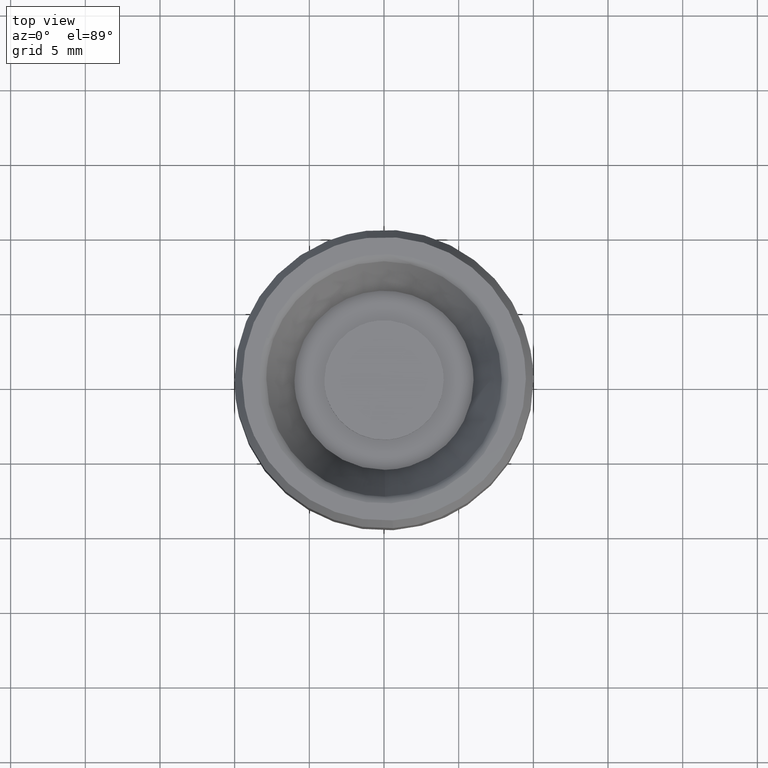
[diagram: clean part render]
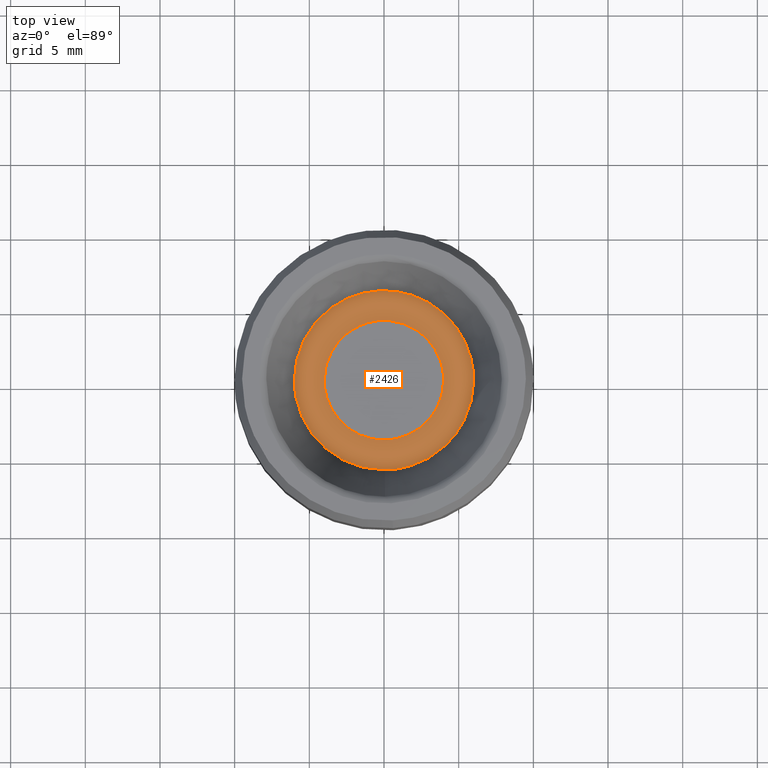
[diagram: same view with one face highlighted and labeled with its STEP entity id]
A machine part, top view. The second image highlights one B-rep face of the part: STEP entity #2426.
In plain terms, the highlighted face is a freeform B-spline surface patch.
Its self-contained STEP definition (entity closure, byte-faithful):
#748=CARTESIAN_POINT('',(0.052357232072653,-5.999770993184670,9.499998453219892));
#749=VERTEX_POINT('',#748);
#755=CARTESIAN_POINT('',(-6.0,0.0,9.500000000000000));
#756=VERTEX_POINT('',#755);
#757=CARTESIAN_POINT('',(0.052357232072653,-5.999770993184670,9.499998453219892));
#758=CARTESIAN_POINT('',(0.026179111965501,-5.999999438771959,9.499998456565018));
#759=CARTESIAN_POINT('',(-4.886872E-009,-5.999999439998984,9.499998459939464));
#760=CARTESIAN_POINT('',(-6.000000002432776,-5.999999721221187,9.499999233329517));
#761=CARTESIAN_POINT('',(-6.0,0.0,9.500000000000000));
#769=(BOUNDED_CURVE()B_SPLINE_CURVE(2,(#757,#758,#759,#760,#761),.UNSPECIFIED.,.F.,.U.)B_SPLINE_CURVE_WITH_KNOTS((3,2,3),(0.748460163677190,0.750000000000000,1.0),.UNSPECIFIED.)CURVE()GEOMETRIC_REPRESENTATION_ITEM()RATIONAL_B_SPLINE_CURVE((0.996414162356869,0.998195969531865,1.0,0.707106781186548,1.0))REPRESENTATION_ITEM(''));
#770=EDGE_CURVE('',#749,#756,#769,.T.);
#772=CARTESIAN_POINT('',(6.0,0.0,9.500000000000000));
#773=VERTEX_POINT('',#772);
#774=CARTESIAN_POINT('',(-6.0,0.0,9.500000000000000));
#775=CARTESIAN_POINT('',(-6.0,6.0,9.500000000000000));
#776=CARTESIAN_POINT('',(0.0,6.0,9.500000000000000));
#777=CARTESIAN_POINT('',(6.0,6.0,9.500000000000000));
#778=CARTESIAN_POINT('',(6.0,0.0,9.500000000000000));
#786=(BOUNDED_CURVE()B_SPLINE_CURVE(2,(#774,#775,#776,#777,#778),.UNSPECIFIED.,.F.,.U.)B_SPLINE_CURVE_WITH_KNOTS((3,2,3),(0.0,0.250000000000000,0.500000000000000),.UNSPECIFIED.)CURVE()GEOMETRIC_REPRESENTATION_ITEM()RATIONAL_B_SPLINE_CURVE((1.0,0.707106781186548,1.0,0.707106781186548,1.0))REPRESENTATION_ITEM(''));
#787=EDGE_CURVE('',#756,#773,#786,.T.);
#789=CARTESIAN_POINT('',(4.137835456704179,-4.344918610657945,9.500000000000012));
#790=VERTEX_POINT('',#789);
#791=CARTESIAN_POINT('',(6.0,0.0,9.500000000000000));
#792=CARTESIAN_POINT('',(6.000000000000001,-2.571506686538599,9.500000000000000));
#793=CARTESIAN_POINT('',(4.137835456704179,-4.344918610657945,9.500000000000012));
#801=(BOUNDED_CURVE()B_SPLINE_CURVE(2,(#791,#792,#793),.UNSPECIFIED.,.F.,.U.)B_SPLINE_CURVE_WITH_KNOTS((3,3),(0.500000000000000,0.628682976150452),.UNSPECIFIED.)CURVE()GEOMETRIC_REPRESENTATION_ITEM()RATIONAL_B_SPLINE_CURVE((1.0,0.849238515635198,0.853680523245776))REPRESENTATION_ITEM(''));
#802=EDGE_CURVE('',#773,#790,#801,.T.);
#844=CARTESIAN_POINT('',(4.137835456704180,-4.344918610657945,9.500000000000012));
#845=CARTESIAN_POINT('',(2.421875859040371,-5.979093579097607,9.499999226609951));
#846=CARTESIAN_POINT('',(0.052357232072653,-5.999770993184670,9.499998453219892));
#854=(BOUNDED_CURVE()B_SPLINE_CURVE(2,(#844,#845,#846),.UNSPECIFIED.,.F.,.U.)B_SPLINE_CURVE_WITH_KNOTS((3,3),(0.628682976150451,0.748460163677190),.UNSPECIFIED.)CURVE()GEOMETRIC_REPRESENTATION_ITEM()RATIONAL_B_SPLINE_CURVE((0.853680523245776,0.857815111941838,0.996414162356869))REPRESENTATION_ITEM(''));
#855=EDGE_CURVE('',#790,#749,#854,.T.);
#883=CARTESIAN_POINT('',(-0.472136938659663,3.972038105450787,9.500000000000000));
#884=VERTEX_POINT('',#883);
#885=CARTESIAN_POINT('',(4.0,0.0,9.500000000000000));
#886=VERTEX_POINT('',#885);
#887=CARTESIAN_POINT('',(-0.472136938659663,3.972038105450787,9.500000000000000));
#888=CARTESIAN_POINT('',(-0.236896478640614,4.000000000000001,9.499999999999998));
#889=CARTESIAN_POINT('',(0.0,4.0,9.500000000000000));
#890=CARTESIAN_POINT('',(4.000000000000000,4.000000000000000,9.500000000000000));
#891=CARTESIAN_POINT('',(4.0,0.0,9.500000000000000));
#899=(BOUNDED_CURVE()B_SPLINE_CURVE(2,(#887,#888,#889,#890,#891),.UNSPECIFIED.,.F.,.U.)B_SPLINE_CURVE_WITH_KNOTS((3,2,3),(0.229562473512868,0.250000000000000,0.500000000000000),.UNSPECIFIED.)CURVE()GEOMETRIC_REPRESENTATION_ITEM()RATIONAL_B_SPLINE_CURVE((0.956026754182443,0.976055948330394,1.0,0.707106781186548,1.0))REPRESENTATION_ITEM(''));
#900=EDGE_CURVE('',#884,#886,#899,.T.);
#941=CARTESIAN_POINT('',(0.244194158180488,-3.992539193684956,9.499999999999998));
#942=VERTEX_POINT('',#941);
#948=CARTESIAN_POINT('',(4.0,0.0,9.500000000000000));
#949=CARTESIAN_POINT('',(4.000000000000001,-3.762824267545230,9.500000000000000));
#950=CARTESIAN_POINT('',(0.244194158180488,-3.992539193684956,9.499999999999998));
#958=(BOUNDED_CURVE()B_SPLINE_CURVE(2,(#948,#949,#950),.UNSPECIFIED.,.F.,.U.)B_SPLINE_CURVE_WITH_KNOTS((3,3),(0.500000000000000,0.739332962238419),.UNSPECIFIED.)CURVE()GEOMETRIC_REPRESENTATION_ITEM()RATIONAL_B_SPLINE_CURVE((1.0,0.719603993287324,0.976072041665595))REPRESENTATION_ITEM(''));
#959=EDGE_CURVE('',#886,#942,#958,.T.);
#982=CARTESIAN_POINT('',(-4.0,0.0,9.500000000000000));
#983=VERTEX_POINT('',#982);
#984=CARTESIAN_POINT('',(-4.0,0.0,9.500000000000000));
#985=CARTESIAN_POINT('',(-4.000000000000001,3.552698103746691,9.500000000000002));
#986=CARTESIAN_POINT('',(-0.472136938659663,3.972038105450787,9.500000000000000));
#994=(BOUNDED_CURVE()B_SPLINE_CURVE(2,(#984,#985,#986),.UNSPECIFIED.,.F.,.U.)B_SPLINE_CURVE_WITH_KNOTS((3,3),(0.0,0.229562473512868),.UNSPECIFIED.)CURVE()GEOMETRIC_REPRESENTATION_ITEM()RATIONAL_B_SPLINE_CURVE((1.0,0.731050832856153,0.956026754182443))REPRESENTATION_ITEM(''));
#995=EDGE_CURVE('',#983,#884,#994,.T.);
#997=CARTESIAN_POINT('',(0.244194158180488,-3.992539193684956,9.499999999999998));
#998=CARTESIAN_POINT('',(0.122211053235531,-4.000000000000000,9.500000000000000));
#999=CARTESIAN_POINT('',(0.0,-4.0,9.500000000000000));
#1000=CARTESIAN_POINT('',(-4.000000000000000,-4.000000000000000,9.500000000000000));
#1001=CARTESIAN_POINT('',(-4.0,0.0,9.500000000000000));
#1009=(BOUNDED_CURVE()B_SPLINE_CURVE(2,(#997,#998,#999,#1000,#1001),.UNSPECIFIED.,.F.,.U.)B_SPLINE_CURVE_WITH_KNOTS((3,2,3),(0.739332962238419,0.750000000000000,1.0),.UNSPECIFIED.)CURVE()GEOMETRIC_REPRESENTATION_ITEM()RATIONAL_B_SPLINE_CURVE((0.976072041665595,0.987502787899224,1.0,0.707106781186548,1.0))REPRESENTATION_ITEM(''));
#1010=EDGE_CURVE('',#942,#983,#1009,.T.);
#2409=CARTESIAN_POINT('',(6.599399976741671,-6.599159699807144,9.500000000000000));
#2410=CARTESIAN_POINT('',(-6.599400298606753,-6.599159699807144,9.500000000000000));
#2411=CARTESIAN_POINT('',(6.599399976741671,6.599388867745378,9.500000000000000));
#2412=CARTESIAN_POINT('',(-6.599400298606753,6.599388867745378,9.500000000000000));
#2413=B_SPLINE_SURFACE_WITH_KNOTS('',1,1,((#2409,#2411),(#2410,#2412)),.UNSPECIFIED.,.F.,.F.,.U.,(2,2),(2,2),(0.0,13.198800275348420),(0.0,13.198548567552519),.UNSPECIFIED.);
#2414=ORIENTED_EDGE('',*,*,#770,.F.);
#2415=ORIENTED_EDGE('',*,*,#855,.F.);
#2416=ORIENTED_EDGE('',*,*,#802,.F.);
#2417=ORIENTED_EDGE('',*,*,#787,.F.);
#2418=EDGE_LOOP('',(#2414,#2415,#2416,#2417));
#2419=FACE_OUTER_BOUND('',#2418,.T.);
#2420=ORIENTED_EDGE('',*,*,#959,.T.);
#2421=ORIENTED_EDGE('',*,*,#1010,.T.);
#2422=ORIENTED_EDGE('',*,*,#995,.T.);
#2423=ORIENTED_EDGE('',*,*,#900,.T.);
#2424=EDGE_LOOP('',(#2420,#2421,#2422,#2423));
#2425=FACE_BOUND('',#2424,.T.);
#2426=ADVANCED_FACE('',(#2419,#2425),#2413,.F.);